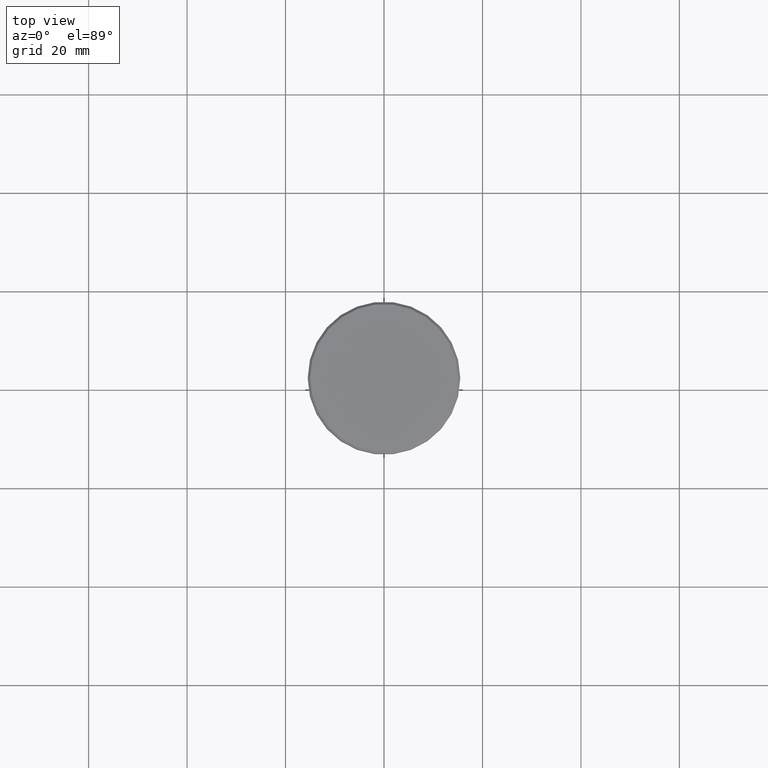
[diagram: clean part render]
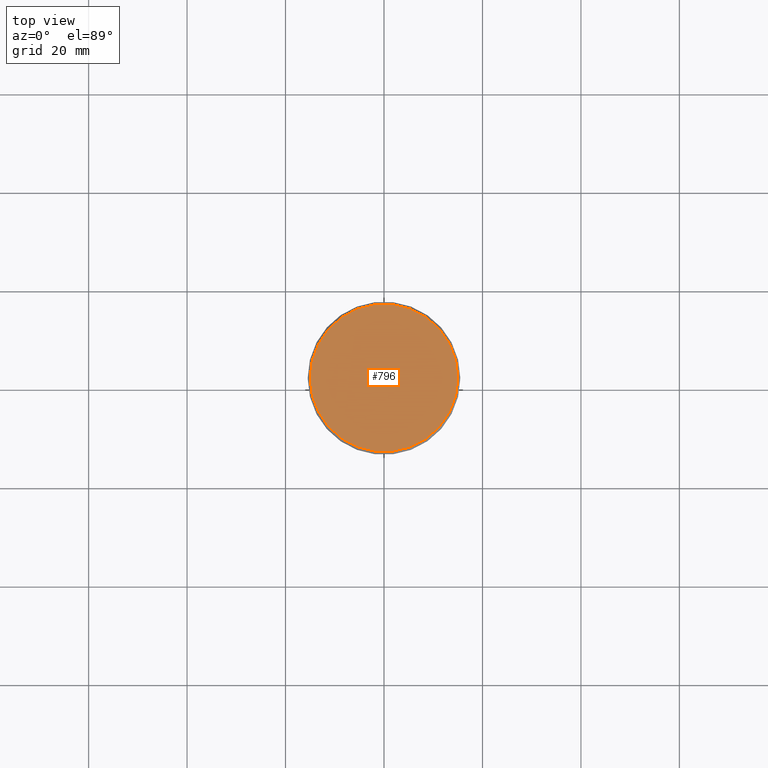
[diagram: same view with one face highlighted and labeled with its STEP entity id]
A machine part, top view. The second image highlights one B-rep face of the part: STEP entity #796.
In plain terms, the highlighted planar face has unit normal (0, -0, 1).
Its self-contained STEP definition (entity closure, byte-faithful):
#67 = CIRCLE ( 'NONE', #358, 14.99999999999997158 ) ;
#133 = EDGE_CURVE ( 'NONE', #1111, #446, #821, .T. ) ;
#220 = FACE_OUTER_BOUND ( 'NONE', #225, .T. ) ;
#225 = EDGE_LOOP ( 'NONE', ( #483, #1156 ) ) ;
#272 = CARTESIAN_POINT ( 'NONE',  ( 0.000000000000000000, 0.000000000000000000, 0.000000000000000000 ) ) ;
#358 = AXIS2_PLACEMENT_3D ( 'NONE', #272, #1105, #649 ) ;
#446 = VERTEX_POINT ( 'NONE', #1049 ) ;
#483 = ORIENTED_EDGE ( 'NONE', *, *, #133, .T. ) ;
#503 = DIRECTION ( 'NONE',  ( 0.000000000000000000, -0.000000000000000000, 1.000000000000000000 ) ) ;
#627 = CARTESIAN_POINT ( 'NONE',  ( 0.000000000000000000, 0.000000000000000000, 0.000000000000000000 ) ) ;
#649 = DIRECTION ( 'NONE',  ( 1.000000000000000000, 0.000000000000000000, 0.000000000000000000 ) ) ;
#667 = DIRECTION ( 'NONE',  ( 1.000000000000000000, 0.000000000000000000, 0.000000000000000000 ) ) ;
#685 = PLANE ( 'NONE',  #1008 ) ;
#716 = EDGE_CURVE ( 'NONE', #446, #1111, #67, .T. ) ;
#779 = CARTESIAN_POINT ( 'NONE',  ( 0.000000000000000000, 0.000000000000000000, 0.000000000000000000 ) ) ;
#792 = DIRECTION ( 'NONE',  ( 1.000000000000000000, 0.000000000000000000, 0.000000000000000000 ) ) ;
#796 = ADVANCED_FACE ( 'NONE', ( #220 ), #685, .T. ) ;
#821 = CIRCLE ( 'NONE', #974, 14.99999999999997158 ) ;
#974 = AXIS2_PLACEMENT_3D ( 'NONE', #627, #978, #792 ) ;
#978 = DIRECTION ( 'NONE',  ( -0.000000000000000000, -0.000000000000000000, 1.000000000000000000 ) ) ;
#1008 = AXIS2_PLACEMENT_3D ( 'NONE', #779, #503, #667 ) ;
#1049 = CARTESIAN_POINT ( 'NONE',  ( 14.99999999999997158, 1.867586368699711798E-15, 0.000000000000000000 ) ) ;
#1094 = CARTESIAN_POINT ( 'NONE',  ( -14.99999999999997158, 0.000000000000000000, 0.000000000000000000 ) ) ;
#1105 = DIRECTION ( 'NONE',  ( -0.000000000000000000, -0.000000000000000000, 1.000000000000000000 ) ) ;
#1111 = VERTEX_POINT ( 'NONE', #1094 ) ;
#1156 = ORIENTED_EDGE ( 'NONE', *, *, #716, .T. ) ;